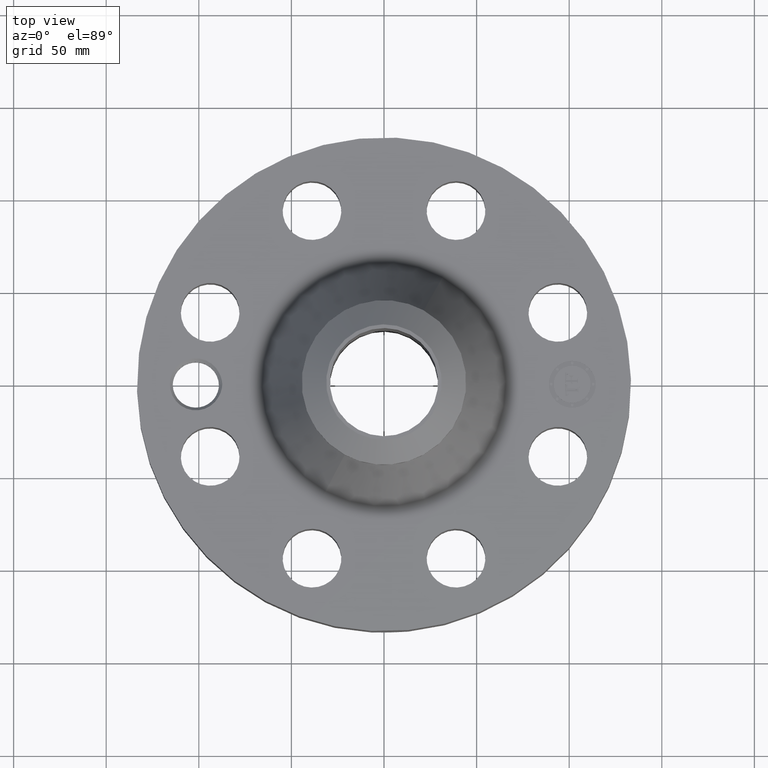
[diagram: clean part render]
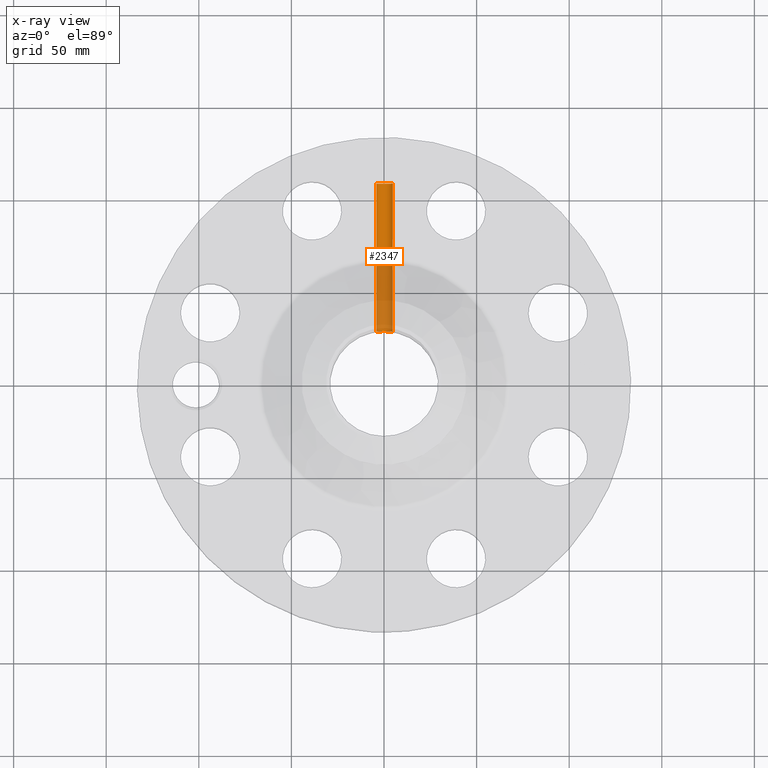
[diagram: x-ray — body ghosted, one internal face saturated and labeled with its STEP entity id]
A machine part, top view, then the same camera in x-ray: the body is ghosted and one INTERNAL B-rep face — a face not visible from any outside direction — is saturated and labeled: STEP entity #2347.
In plain terms, the highlighted cylindrical surface (edge-blend (fillet) strip) has radius 4.7625 mm, axis along (-0, -1, 0).
Its self-contained STEP definition (entity closure, byte-faithful):
#2308=AXIS2_PLACEMENT_3D('Cylinder Axis2P3D',#2305,#2306,#2307) ;
#2338=AXIS2_PLACEMENT_3D('Circle Axis2P3D',#2336,#2337,$) ;
#1241=CARTESIAN_POINT('Control Point',(-0.164546730355,1.13816711143,0.850107711515)) ;
#1242=CARTESIAN_POINT('Control Point',(-0.153731456491,1.13973069373,0.830310485501)) ;
#1243=CARTESIAN_POINT('Control Point',(-0.13994874619,1.14159213501,0.812157931074)) ;
#1244=CARTESIAN_POINT('Control Point',(-0.123523720006,1.14356105809,0.796224476748)) ;
#1245=CARTESIAN_POINT('Control Point',(-0.0772319416227,1.14809159051,0.763249153917)) ;
#1246=CARTESIAN_POINT('Control Point',(-0.0212741450422,1.15057887466,0.74902827398)) ;
#1247=CARTESIAN_POINT('Control Point',(0.0137347069308,1.15070493463,0.748335369814)) ;
#1248=CARTESIAN_POINT('Control Point',(0.0702470116784,1.14856850265,0.760352207799)) ;
#1249=CARTESIAN_POINT('Control Point',(0.117822070886,1.14417622941,0.791510251329)) ;
#1250=CARTESIAN_POINT('Control Point',(0.134871090785,1.14221708934,0.806807466354)) ;
#1251=CARTESIAN_POINT('Control Point',(0.174318947875,1.13705048297,0.854775081677)) ;
#1252=CARTESIAN_POINT('Control Point',(0.192220809726,1.13381572754,0.915784323688)) ;
#1253=CARTESIAN_POINT('Control Point',(0.193021554597,1.13366052048,0.956729117099)) ;
#1254=CARTESIAN_POINT('Control Point',(0.183195658149,1.13547100463,0.995755655142)) ;
#1255=CARTESIAN_POINT('Control Point',(0.164546730355,1.13816711143,1.02989228849)) ;
#1256=CARTESIAN_POINT('Vertex',(-0.164546730355,1.13816711143,0.850107711515)) ;
#1258=CARTESIAN_POINT('Vertex',(0.164546730355,1.13816711143,1.02989228849)) ;
#2305=CARTESIAN_POINT('Axis2P3D Location',(-3.63735926578E-015,5.24606299215,0.940000000004)) ;
#2310=CARTESIAN_POINT('Line Origine',(-0.164546730355,2.71164510975,0.850107711515)) ;
#2314=CARTESIAN_POINT('Vertex',(-0.164546730355,4.28930101281,0.850107711515)) ;
#2321=CARTESIAN_POINT('Vertex',(0.164546730355,4.28930101281,1.02989228849)) ;
#2324=CARTESIAN_POINT('Line Origine',(0.164546730355,2.71164510975,1.02989228849)) ;
#2336=CARTESIAN_POINT('Axis2P3D Location',(-3.81311359011E-015,4.28930101281,0.940000000004)) ;
#2306=DIRECTION('Axis2P3D Direction',(-7.2321661367E-018,-0.0393700787402,0.)) ;
#2307=DIRECTION('Axis2P3D XDirection',(-0.0345504945627,6.34682288627E-018,-0.0188750212048)) ;
#2311=DIRECTION('Vector Direction',(-7.41719031406E-018,-0.0393700787402,0.)) ;
#2325=DIRECTION('Vector Direction',(-7.41719031406E-018,-0.0393700787402,0.)) ;
#2337=DIRECTION('Axis2P3D Direction',(-7.2321661367E-018,-0.0393700787402,0.)) ;
#2312=VECTOR('Line Direction',#2311,0.0393700787402) ;
#2326=VECTOR('Line Direction',#2325,0.0393700787402) ;
#2342=ORIENTED_EDGE('',*,*,#1260,.T.) ;
#2343=ORIENTED_EDGE('',*,*,#2328,.T.) ;
#2344=ORIENTED_EDGE('',*,*,#2340,.F.) ;
#2345=ORIENTED_EDGE('',*,*,#2316,.F.) ;
#2347=ADVANCED_FACE('PartBody',(#2346),#2309,.F.) ;
#1240=B_SPLINE_CURVE_WITH_KNOTS('',5,(#1241,#1242,#1243,#1244,#1245,#1246,#1247,#1248,#1249,#1250,#1251,#1252,#1253,#1254,#1255),.UNSPECIFIED.,.F.,.U.,(6,3,3,3,6),(0.,4.06140001898,10.1258632552,14.1909067054,21.194035489),.UNSPECIFIED.) ;
#2339=CIRCLE('generated circle',#2338,0.187500000001) ;
#2309=CYLINDRICAL_SURFACE('generated cylinder',#2308,0.187500000001) ;
#1260=EDGE_CURVE('',#1257,#1259,#1240,.T.) ;
#2316=EDGE_CURVE('',#1257,#2315,#2313,.F.) ;
#2328=EDGE_CURVE('',#1259,#2322,#2327,.F.) ;
#2340=EDGE_CURVE('',#2315,#2322,#2339,.T.) ;
#2341=EDGE_LOOP('',(#2342,#2343,#2344,#2345)) ;
#2346=FACE_OUTER_BOUND('',#2341,.T.) ;
#2313=LINE('Line',#2310,#2312) ;
#2327=LINE('Line',#2324,#2326) ;
#1257=VERTEX_POINT('',#1256) ;
#1259=VERTEX_POINT('',#1258) ;
#2315=VERTEX_POINT('',#2314) ;
#2322=VERTEX_POINT('',#2321) ;